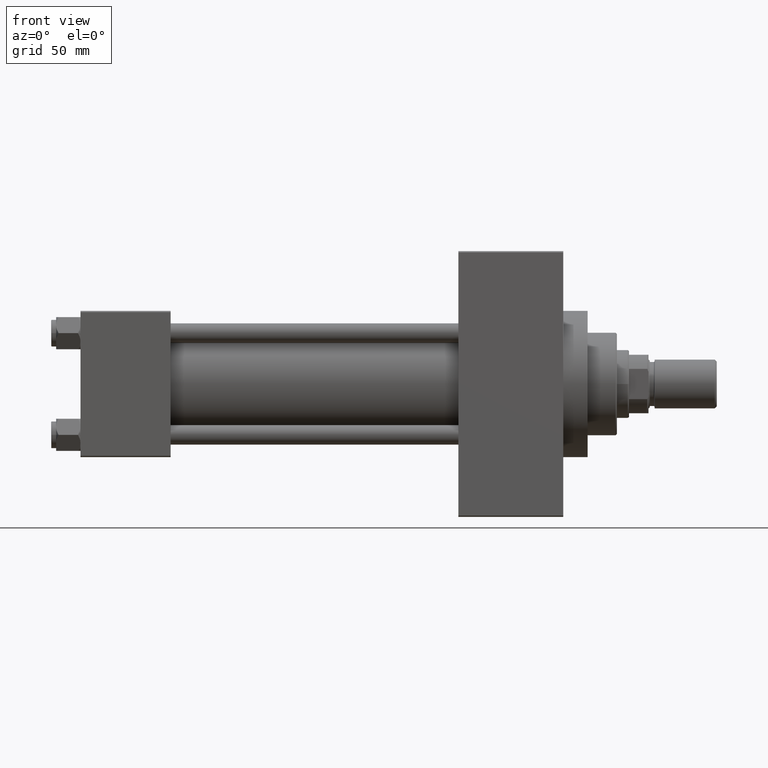
[diagram: clean part render]
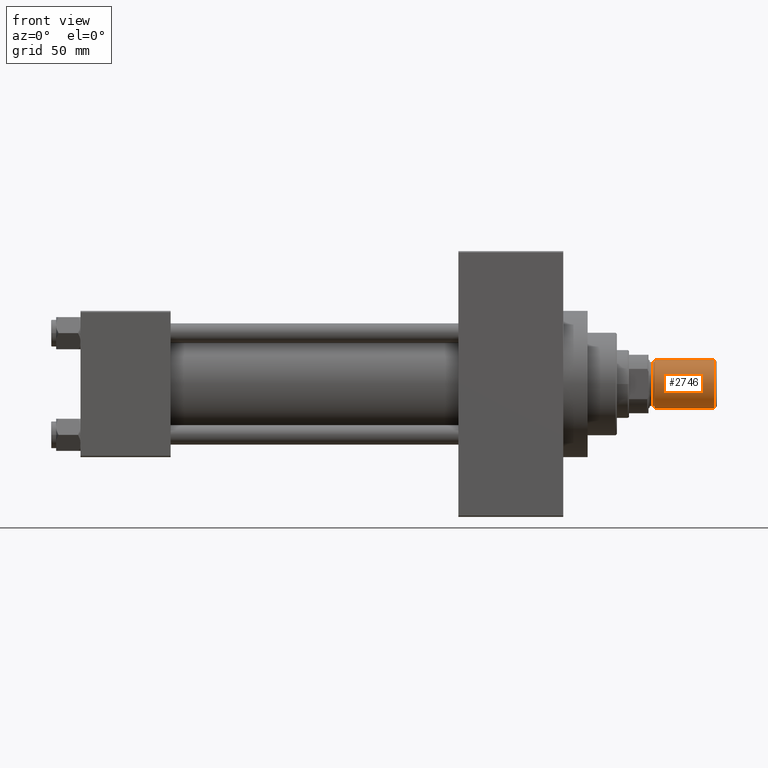
[diagram: same view with one face highlighted and labeled with its STEP entity id]
A machine part, front view. The second image highlights one B-rep face of the part: STEP entity #2746.
In plain terms, the highlighted cylindrical surface (edge-blend (fillet) strip) has radius 10 mm, axis along (1, -0, -0).
Its self-contained STEP definition (entity closure, byte-faithful):
#141 = LINE ( 'NONE', #29548, #25993 ) ;
#385 = DIRECTION ( 'NONE',  ( -0.000000000000000000, -0.000000000000000000, -1.000000000000000000 ) ) ;
#1426 = CARTESIAN_POINT ( 'NONE',  ( -10.00000000000000000, 0.000000000000000000, 0.8000000000000055955 ) ) ;
#1491 = VERTEX_POINT ( 'NONE', #1426 ) ;
#1732 = DIRECTION ( 'NONE',  ( 1.000000000000000000, 0.000000000000000000, 0.000000000000000000 ) ) ;
#2746 = ADVANCED_FACE ( 'NONE', ( #14484 ), #43946, .T. ) ;
#3188 = DIRECTION ( 'NONE',  ( -0.000000000000000000, -0.000000000000000000, -1.000000000000000000 ) ) ;
#3439 = CARTESIAN_POINT ( 'NONE',  ( 0.000000000000000000, 0.000000000000000000, 0.8000000000000055955 ) ) ;
#4845 = AXIS2_PLACEMENT_3D ( 'NONE', #29207, #3188, #10909 ) ;
#6546 = VERTEX_POINT ( 'NONE', #30289 ) ;
#8229 = CIRCLE ( 'NONE', #15910, 10.00000000000000000 ) ;
#8429 = ORIENTED_EDGE ( 'NONE', *, *, #8749, .F. ) ;
#8749 = EDGE_CURVE ( 'NONE', #17932, #6546, #11258, .T. ) ;
#9541 = VERTEX_POINT ( 'NONE', #13482 ) ;
#10341 = VECTOR ( 'NONE', #33903, 1000.000000000000000 ) ;
#10909 = DIRECTION ( 'NONE',  ( -1.000000000000000000, 0.000000000000000000, 0.000000000000000000 ) ) ;
#11258 = LINE ( 'NONE', #25931, #10341 ) ;
#13482 = CARTESIAN_POINT ( 'NONE',  ( -10.00000000000000000, 0.000000000000000000, 25.50000000000000000 ) ) ;
#14484 = FACE_OUTER_BOUND ( 'NONE', #29543, .T. ) ;
#15423 = EDGE_CURVE ( 'NONE', #9541, #17932, #38247, .T. ) ;
#15910 = AXIS2_PLACEMENT_3D ( 'NONE', #3439, #28974, #24858 ) ;
#17760 = ORIENTED_EDGE ( 'NONE', *, *, #37729, .T. ) ;
#17932 = VERTEX_POINT ( 'NONE', #47563 ) ;
#24858 = DIRECTION ( 'NONE',  ( 1.000000000000000000, 0.000000000000000000, 0.000000000000000000 ) ) ;
#25931 = CARTESIAN_POINT ( 'NONE',  ( 10.00000000000000000, 1.224646799147353256E-15, 25.50000000000000000 ) ) ;
#25993 = VECTOR ( 'NONE', #385, 1000.000000000000000 ) ;
#26799 = DIRECTION ( 'NONE',  ( 0.000000000000000000, 0.000000000000000000, 1.000000000000000000 ) ) ;
#27035 = CARTESIAN_POINT ( 'NONE',  ( 0.000000000000000000, 0.000000000000000000, 25.50000000000000000 ) ) ;
#28974 = DIRECTION ( 'NONE',  ( -0.000000000000000000, -0.000000000000000000, 1.000000000000000000 ) ) ;
#29207 = CARTESIAN_POINT ( 'NONE',  ( 0.000000000000000000, 0.000000000000000000, 25.50000000000000000 ) ) ;
#29543 = EDGE_LOOP ( 'NONE', ( #8429, #31965, #46333, #17760 ) ) ;
#29548 = CARTESIAN_POINT ( 'NONE',  ( -10.00000000000000000, 0.000000000000000000, 25.50000000000000000 ) ) ;
#30289 = CARTESIAN_POINT ( 'NONE',  ( 10.00000000000000000, 1.224646799147353256E-15, 0.8000000000000055955 ) ) ;
#31965 = ORIENTED_EDGE ( 'NONE', *, *, #15423, .F. ) ;
#33903 = DIRECTION ( 'NONE',  ( -0.000000000000000000, -0.000000000000000000, -1.000000000000000000 ) ) ;
#37729 = EDGE_CURVE ( 'NONE', #1491, #6546, #8229, .T. ) ;
#38247 = CIRCLE ( 'NONE', #47518, 10.00000000000000000 ) ;
#41274 = EDGE_CURVE ( 'NONE', #9541, #1491, #141, .T. ) ;
#43946 = CYLINDRICAL_SURFACE ( 'NONE', #4845, 10.00000000000000000 ) ;
#46333 = ORIENTED_EDGE ( 'NONE', *, *, #41274, .T. ) ;
#47518 = AXIS2_PLACEMENT_3D ( 'NONE', #27035, #26799, #1732 ) ;
#47563 = CARTESIAN_POINT ( 'NONE',  ( 10.00000000000000000, 1.224646799147353256E-15, 25.50000000000000000 ) ) ;